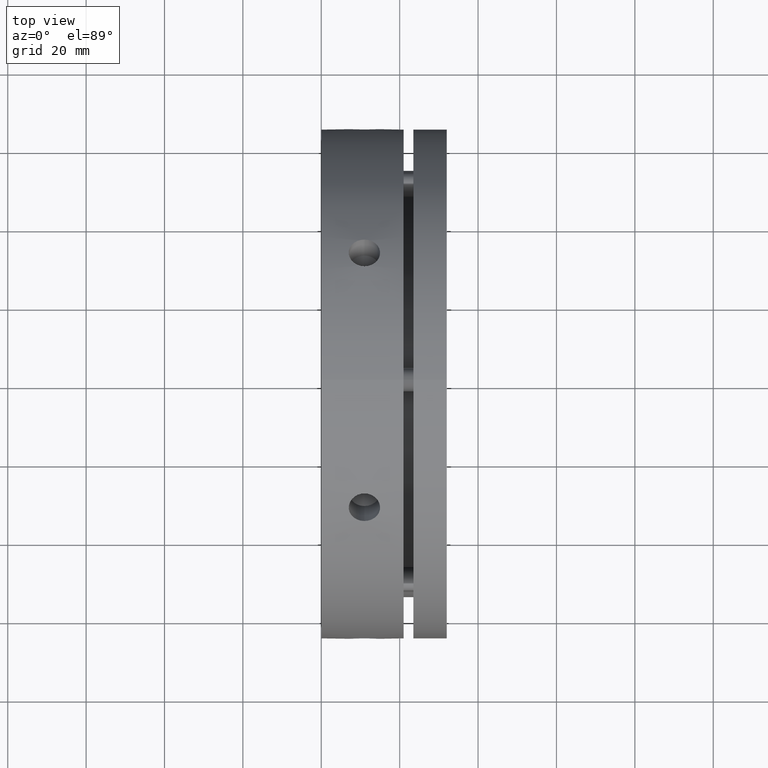
[diagram: clean part render]
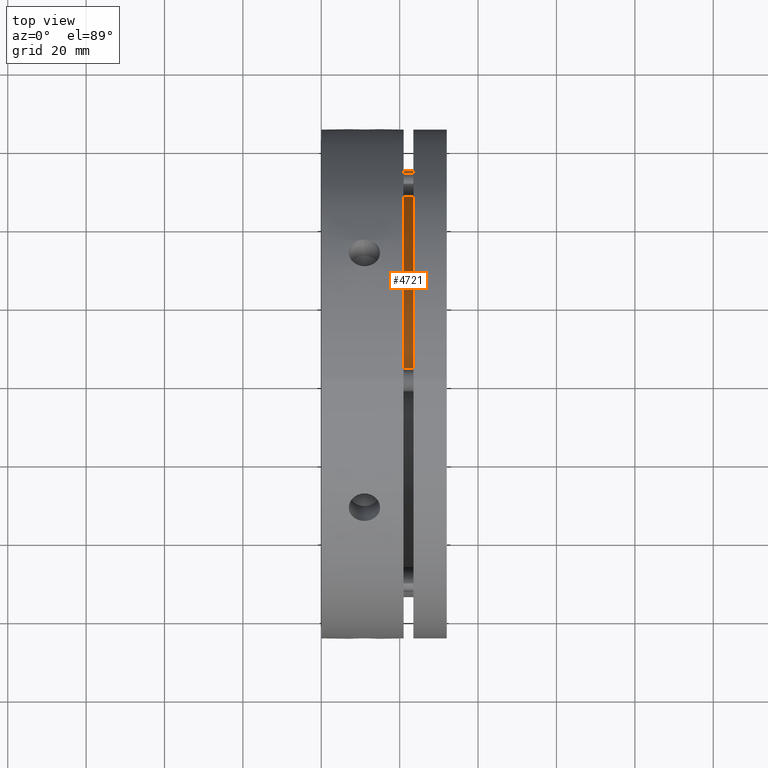
[diagram: same view with one face highlighted and labeled with its STEP entity id]
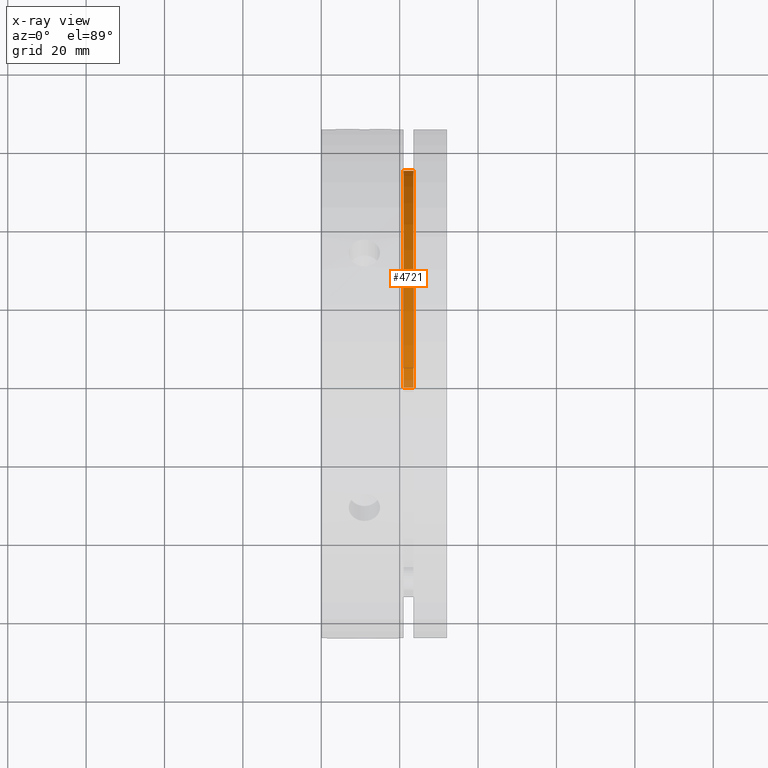
[diagram: x-ray of the same camera — body ghosted, the highlighted face saturated]
A machine part, top view. The second image highlights one B-rep face of the part: STEP entity #4721.
The next image is the same camera in x-ray: the body ghosted, the highlighted face saturated — about 3% of this face is hidden behind the body in this view.
In plain terms, the highlighted cylindrical surface (partial cylindrical patch) has radius 54.5 mm, axis along (-1, 0, 0).
Its self-contained STEP definition (entity closure, byte-faithful):
#4 = FACE_OUTER_BOUND ( 'NONE', #3410, .T. ) ;
#15 = CYLINDRICAL_SURFACE ( 'NONE', #3828, 54.50000000000000000 ) ;
#213 = VERTEX_POINT ( 'NONE', #4379 ) ;
#214 = VERTEX_POINT ( 'NONE', #4380 ) ;
#217 = VERTEX_POINT ( 'NONE', #4383 ) ;
#223 = VERTEX_POINT ( 'NONE', #4389 ) ;
#1395 = CARTESIAN_POINT ( 'NONE',  ( 22.24999999999998600, 6.674325055353075000E-015, -54.50000000000000000 ) ) ;
#1401 = DIRECTION ( 'NONE',  ( -1.000000000000000000, 0.0000000000000000000, 0.0000000000000000000 ) ) ;
#1402 = CARTESIAN_POINT ( 'NONE',  ( 22.24999999999998600, 0.0000000000000000000, 54.50000000000000000 ) ) ;
#1403 = DIRECTION ( 'NONE',  ( -1.000000000000000000, 0.0000000000000000000, 0.0000000000000000000 ) ) ;
#1404 = CARTESIAN_POINT ( 'NONE',  ( 23.49999999999998600, 0.0000000000000000000, 0.0000000000000000000 ) ) ;
#1405 = DIRECTION ( 'NONE',  ( -1.000000000000000000, 0.0000000000000000000, 0.0000000000000000000 ) ) ;
#1406 = DIRECTION ( 'NONE',  ( 0.0000000000000000000, 0.0000000000000000000, 1.000000000000000000 ) ) ;
#1408 = CARTESIAN_POINT ( 'NONE',  ( 20.99999999999998600, 0.0000000000000000000, 0.0000000000000000000 ) ) ;
#1409 = DIRECTION ( 'NONE',  ( 1.000000000000000000, -0.0000000000000000000, -0.0000000000000000000 ) ) ;
#1410 = DIRECTION ( 'NONE',  ( 0.0000000000000000000, 0.0000000000000000000, 1.000000000000000000 ) ) ;
#1989 = DIRECTION ( 'NONE',  ( 0.0000000000000000000, 0.0000000000000000000, 1.000000000000000000 ) ) ;
#1991 = DIRECTION ( 'NONE',  ( -1.000000000000000000, 0.0000000000000000000, 0.0000000000000000000 ) ) ;
#1993 = CARTESIAN_POINT ( 'NONE',  ( 22.24999999999998600, 0.0000000000000000000, 0.0000000000000000000 ) ) ;
#2599 = ORIENTED_EDGE ( 'NONE', *, *, #4263, .F. ) ;
#2601 = ORIENTED_EDGE ( 'NONE', *, *, #4262, .T. ) ;
#2603 = ORIENTED_EDGE ( 'NONE', *, *, #4260, .T. ) ;
#2605 = ORIENTED_EDGE ( 'NONE', *, *, #4261, .T. ) ;
#3410 = EDGE_LOOP ( 'NONE', ( #2605, #2603, #2601, #2599 ) ) ;
#3468 = VECTOR ( 'NONE', #1403, 1000.000000000000000 ) ;
#3470 = LINE ( 'NONE', #1402, #3468 ) ;
#3471 = CIRCLE ( 'NONE', #4081, 54.50000000000000000 ) ;
#3472 = VECTOR ( 'NONE', #1401, 1000.000000000000000 ) ;
#3475 = CIRCLE ( 'NONE', #4082, 54.50000000000000000 ) ;
#3480 = LINE ( 'NONE', #1395, #3472 ) ;
#3828 = AXIS2_PLACEMENT_3D ( 'NONE', #1993, #1991, #1989 ) ;
#4081 = AXIS2_PLACEMENT_3D ( 'NONE', #1408, #1409, #1410 ) ;
#4082 = AXIS2_PLACEMENT_3D ( 'NONE', #1404, #1405, #1406 ) ;
#4260 = EDGE_CURVE ( 'NONE', #223, #214, #3480, .T. ) ;
#4261 = EDGE_CURVE ( 'NONE', #217, #223, #3475, .T. ) ;
#4262 = EDGE_CURVE ( 'NONE', #214, #213, #3471, .T. ) ;
#4263 = EDGE_CURVE ( 'NONE', #217, #213, #3470, .T. ) ;
#4379 = CARTESIAN_POINT ( 'NONE',  ( 20.99999999999998600, 0.0000000000000000000, 54.50000000000000000 ) ) ;
#4380 = CARTESIAN_POINT ( 'NONE',  ( 20.99999999999998600, 6.674325055353075000E-015, -54.50000000000000000 ) ) ;
#4383 = CARTESIAN_POINT ( 'NONE',  ( 23.49999999999998600, 0.0000000000000000000, 54.50000000000000000 ) ) ;
#4389 = CARTESIAN_POINT ( 'NONE',  ( 23.49999999999998600, 6.674325055353075000E-015, -54.50000000000000000 ) ) ;
#4721 = ADVANCED_FACE ( 'NONE', ( #4 ), #15, .T. ) ;